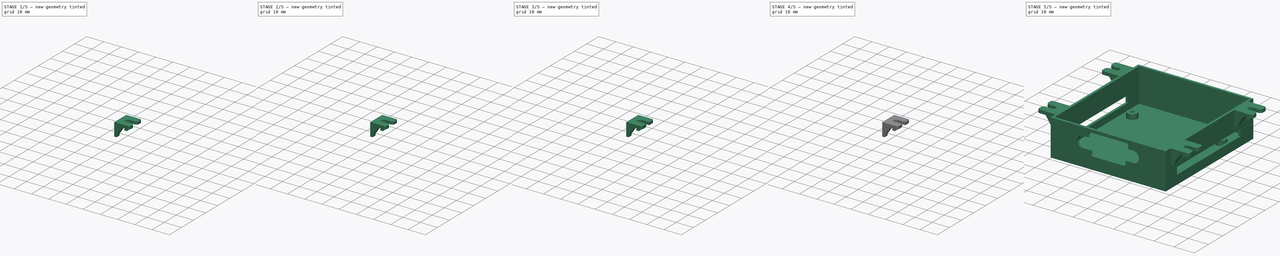
[diagram: build sequence overview — one tinted view per stage of 5, left to right]
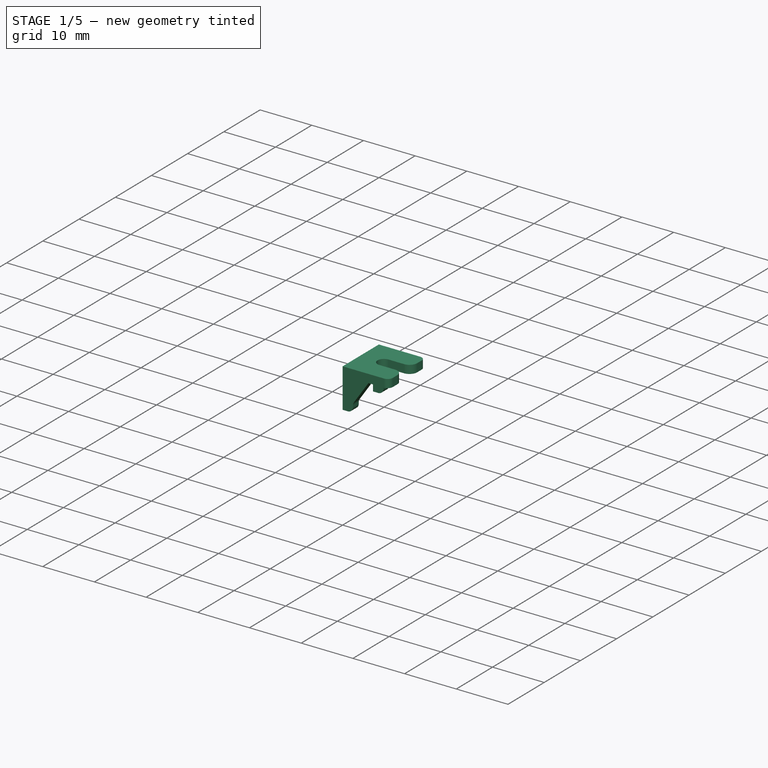
[diagram: stage 1 of 5 — iso view after this stage's code; geometry added in this stage tinted green]
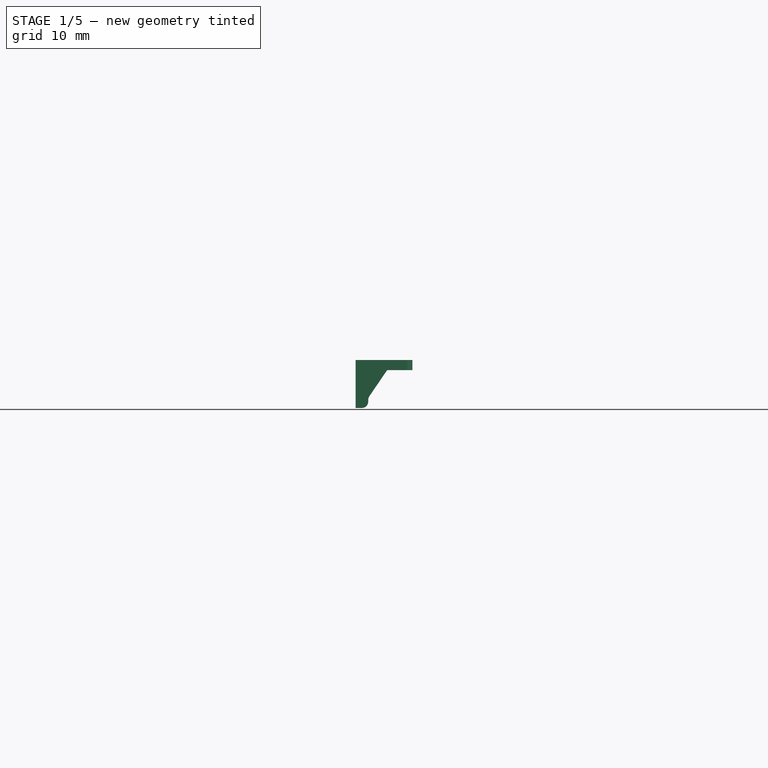
[diagram: stage 1 of 5 — front view after this stage's code; geometry added in this stage tinted green]
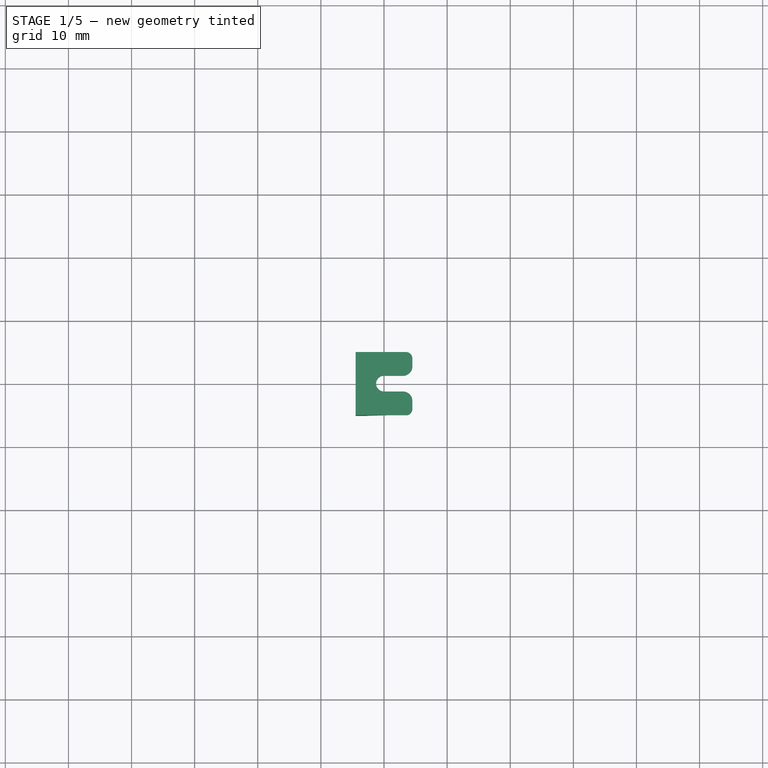
[diagram: stage 1 of 5 — top view after this stage's code; geometry added in this stage tinted green]
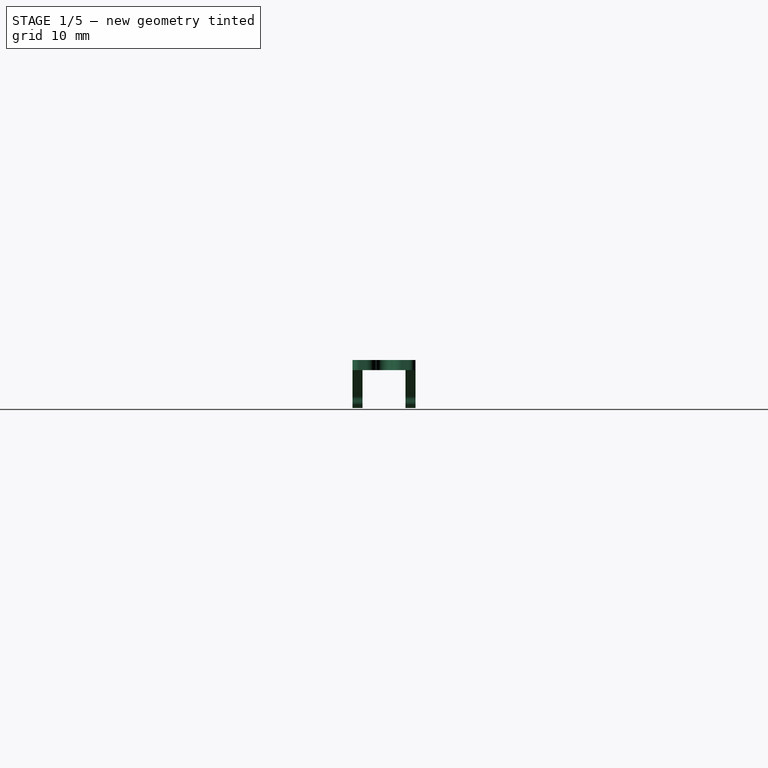
[diagram: stage 1 of 5 — right view after this stage's code; geometry added in this stage tinted green]
FCSTD DOCUMENT  (FreeCAD 0.20R29603 (Git))
Label: ControlBox
License: All rights reserved
LicenseURL: http://en.wikipedia.org/wiki/All_rights_reserved
objects: PartDesign::Fillet×16, Sketcher::SketchObject×13, PartDesign::Pad×10, PartDesign::Plane×7, Spreadsheet::Sheet×5, PartDesign::Body×5, PartDesign::LinearPattern×4, PartDesign::Pocket×3, PartDesign::SubShapeBinder×1, PartDesign::Boolean×1
note: 89 computed .brp shape members not serialized (recipe doc carries the construction recipe); baked Part::Feature solids carry a one-line shape summary decoded from their .brp

FEATURE [PartDesign::Body] Body003  label="Tab3"
  Group = -> [Sketch008,Pad006,DatumPlane004,Sketch009,Pad007,LinearPattern002,Fillet008,Fillet009,Fillet010,Fillet011]
  Origin = -> Origin011
  Placement = pos=(-33,22.5,16.4) rot=(0,0,1;3.14159rad)
  Tip = -> Fillet011
FEATURE [Spreadsheet::Sheet] Spreadsheet003  label="Params003"
  cells = A1=tab_insertion; B1(tab_insertion)=1; A2=tab_width; B2(tab_width)=10; A3=tab_length; B3(tab_length)=9; A4=tab_height; B4(tab_height)=6; A5=tab_thickness; B5(tab_thickness)=1.6; A6=tab_rib_length; B6(tab_rib_length)==B3 - 4; A7=tab_rib_height; B7(tab_rib_height)==B4 - B8; A8=tab_rib_thickness; B8(tab_rib_thickness)=1.6; A9=tab_hole_x; B9(tab_hole_x)==B3 / 2; A10=tab_hole_y; B10(tab_hole_y)=0; A11=tab_hole_diameter; B11(tab_hole_diameter)=2.5; A12=tab_rib_insert; B12(tab_rib_insert)==2 * B1; A13=tab_ribs_gap; B13(tab_ribs_gap)==B2 - B8
FEATURE [Sketcher::SketchObject] Sketch010
  FullyConstrained = true
  MapMode = 5
  Support = -> [XY_Plane012]
  expr: Constraints[13] = <<Params004>>.tab_length
  expr: Constraints[14] = <<Params004>>.tab_width
  expr: Constraints[19] = <<Params004>>.tab_hole_diameter
  expr: Constraints[20] = <<Params004>>.tab_hole_x
  sketch-geometry (8):
    g0: LineSegment StartX=-4.5 StartY=5 StartZ=0 EndX=4.5 EndY=5 EndZ=0
    g1: LineSegment StartX=4.5 StartY=5 StartZ=0 EndX=4.5 EndY=1.25 EndZ=0
    g2: LineSegment StartX=4.5 StartY=-5 StartZ=0 EndX=-4.5 EndY=-5 EndZ=0
    g3: LineSegment StartX=-4.5 StartY=-5 StartZ=0 EndX=-4.5 EndY=5 EndZ=0
    g4: ArcOfCircle CenterX=-3e-16 CenterY=0 CenterZ=0 NormalX=0 NormalY=0 NormalZ=1 AngleXU=0 Radius=1.25 StartAngle=1.5708 EndAngle=4.71239
    g5: LineSegment StartX=-5e-16 StartY=1.25 StartZ=0 EndX=4.5 EndY=1.25 EndZ=0
    g6: LineSegment StartX=4.5 StartY=-1.25 StartZ=0 EndX=-9e-16 EndY=-1.25 EndZ=0
    g7: LineSegment StartX=4.5 StartY=-1.25 StartZ=0 EndX=4.5 EndY=-5 EndZ=0
  constraints (21):
    c: Coincident(g0,g1)
    c: Coincident(g7,g2)
    c: Coincident(g2,g3)
    c: Coincident(g3,g0)
    c: Horizontal(g2)
    c: Vertical(g1)
    c: Symmetric(g0,g0,g-2)
    c: Symmetric(g0,g2,g-1)
    c: PointOnObject(g4,g-1)
    c: Horizontal(g5)
    c: Horizontal(g6)
    c: Coincident(g1,g5)
    c: Coincident(g7,g6)
    c: DistanceX(g0,g0) = 9
    c: DistanceY(g2,g0) = 10
    c: Tangent(g4,g5) = 1.5708
    c: Tangent(g6,g4) = 1.5708
    c: Vertical(g7)
    c: Vertical(g6,g1)
    c: Diameter(g4) = 2.5
    c: DistanceX(g0,g4) = 4.5
FEATURE [PartDesign::Pad] Pad008
  Direction = (0,0,1)
  Length = 1.6
  Length2 = 10
  Profile = -> Sketch010
  ReferenceAxis = -> Sketch010 [N_Axis]
  Type = 0
  expr: Length = <<Params004>>.tab_thickness
FEATURE [PartDesign::Plane] DatumPlane005  label="PlaneRib003"
  Length = 60
  MapMode = 5
  Placement = pos=(0,-5,0) rot=(1,0,0;1.5708rad)
  ResizeMode = 0
  Support = -> [Pad008]
  Width = 60
FEATURE [Sketcher::SketchObject] Sketch011
  ExternalGeometry = -> [Pad008]
  FullyConstrained = true
  MapMode = 5
  Placement = pos=(0,-5,0) rot=(1,0,0;1.5708rad)
  Support = -> [DatumPlane005]
  expr: Constraints[11] = <<Params004>>.tab_rib_height
  expr: Constraints[12] = <<Params004>>.tab_rib_length
  expr: Constraints[13] = <<Params004>>.tab_rib_insert
  expr: Constraints[6] = <<Params004>>.tab_height
  sketch-geometry (5):
    g0: LineSegment StartX=-4.5 StartY=0 StartZ=0 EndX=-4.5 EndY=-6 EndZ=0
    g1: LineSegment StartX=-4.5 StartY=-6 StartZ=0 EndX=-2.5 EndY=-6 EndZ=0
    g2: LineSegment StartX=0.5 StartY=0 StartZ=0 EndX=-4.5 EndY=0 EndZ=0
    g3: LineSegment StartX=-2.5 StartY=-6 StartZ=0 EndX=-2.5 EndY=-4.4 EndZ=0
    g4: LineSegment StartX=-2.5 StartY=-4.4 StartZ=0 EndX=0.5 EndY=0 EndZ=0
  constraints (14):
    c: Coincident(g0,g-3)
    c: Vertical(g0)
    c: Coincident(g1,g0)
    c: PointOnObject(g2,g-1)
    c: Coincident(g2,g0)
    c: Horizontal(g1)
    c: DistanceY(g0,g0) = 6
    c: Coincident(g3,g1)
    c: Vertical(g3)
    c: Coincident(g4,g3)
    c: Coincident(g4,g2)
    c: DistanceY(g3,g-1) = 4.4
    c: DistanceX(g0,g2) = 5
    c: DistanceX(g0,g1) = 2
FEATURE [PartDesign::Pad] Pad009  label="TabRib008"
  BaseFeature = -> Pad008
  Direction = (0,-1,2e-16)
  Length = 1.6
  Length2 = 10
  Profile = -> Sketch011
  ReferenceAxis = -> Sketch011 [N_Axis]
  Reversed = true
  Type = 0
  expr: Length = <<Params004>>.tab_rib_thickness
FEATURE [PartDesign::LinearPattern] LinearPattern003  label="TabRib007"
  BaseFeature = -> Pad009
  Direction = -> Y_Axis012
  Length = 8.4
  Occurrences = 2
  Originals = -> [Pad009]
  expr: Length = <<Params004>>.tab_ribs_gap
FEATURE [PartDesign::Fillet] Fillet012
  Base = -> LinearPattern003 [Edge51,Edge52]
  BaseFeature = -> LinearPattern003
  Radius = 1
  SupportTransform = false
  UseAllEdges = false
FEATURE [PartDesign::Fillet] Fillet013
  Base = -> Fillet012 [Edge14,Edge52]
  BaseFeature = -> Fillet012
  Radius = 1
  SupportTransform = false
  UseAllEdges = false
FEATURE [PartDesign::Fillet] Fillet014
  Base = -> Fillet013 [Edge19,Edge53]
  BaseFeature = -> Fillet013
  Radius = 1
  SupportTransform = false
  UseAllEdges = false
FEATURE [PartDesign::Fillet] Fillet015
  Base = -> Fillet014 [Edge38,Edge43]
  BaseFeature = -> Fillet014
  Radius = 1.5
  SupportTransform = false
  UseAllEdges = false
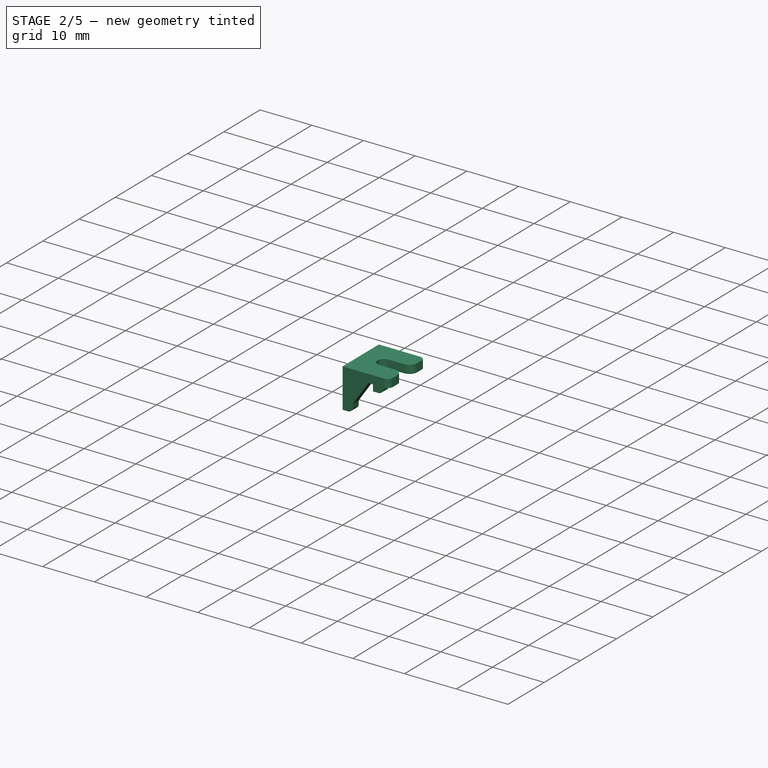
[diagram: stage 2 of 5 — iso view after this stage's code; geometry added in this stage tinted green]
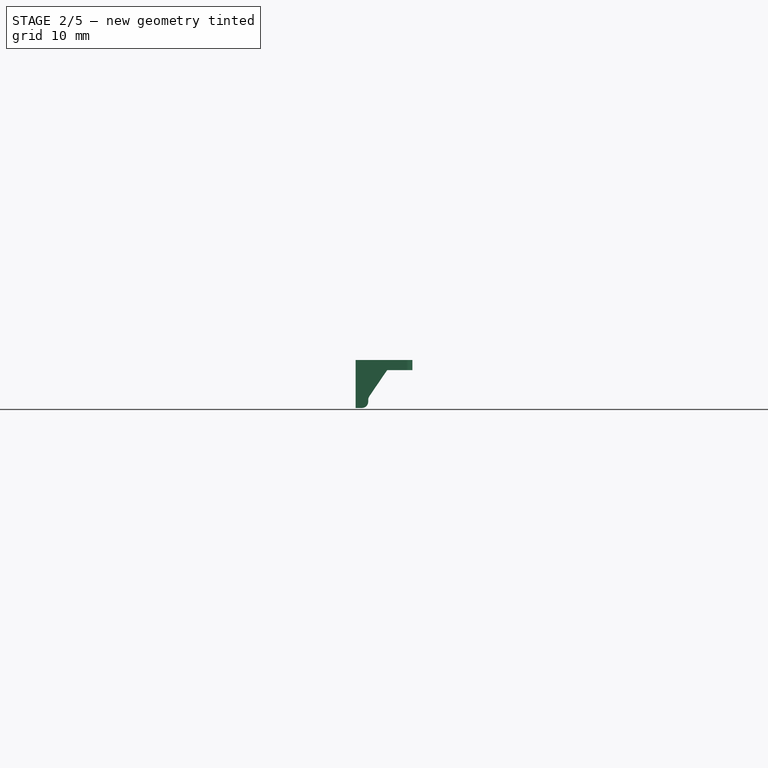
[diagram: stage 2 of 5 — front view after this stage's code; geometry added in this stage tinted green]
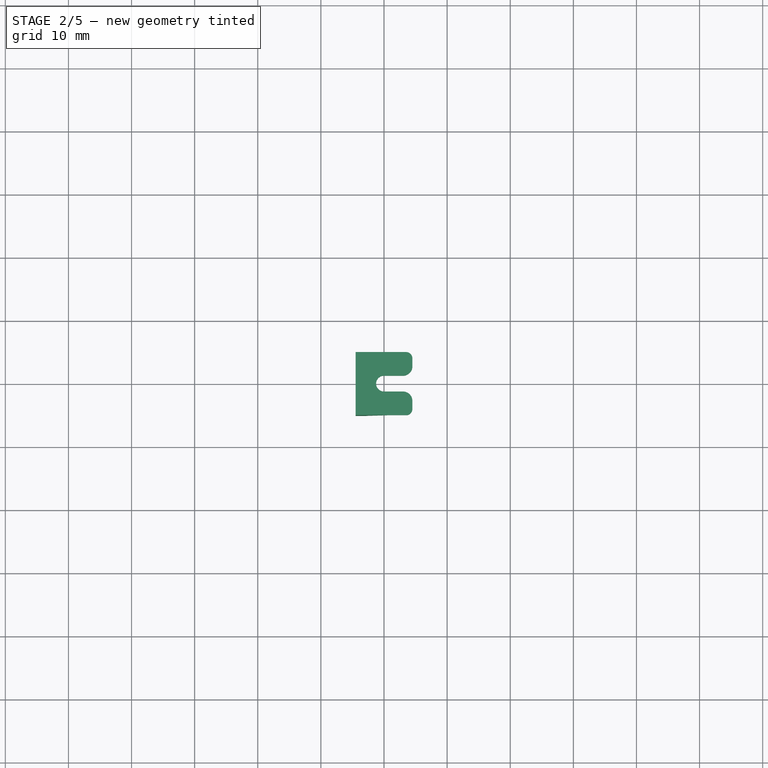
[diagram: stage 2 of 5 — top view after this stage's code; geometry added in this stage tinted green]
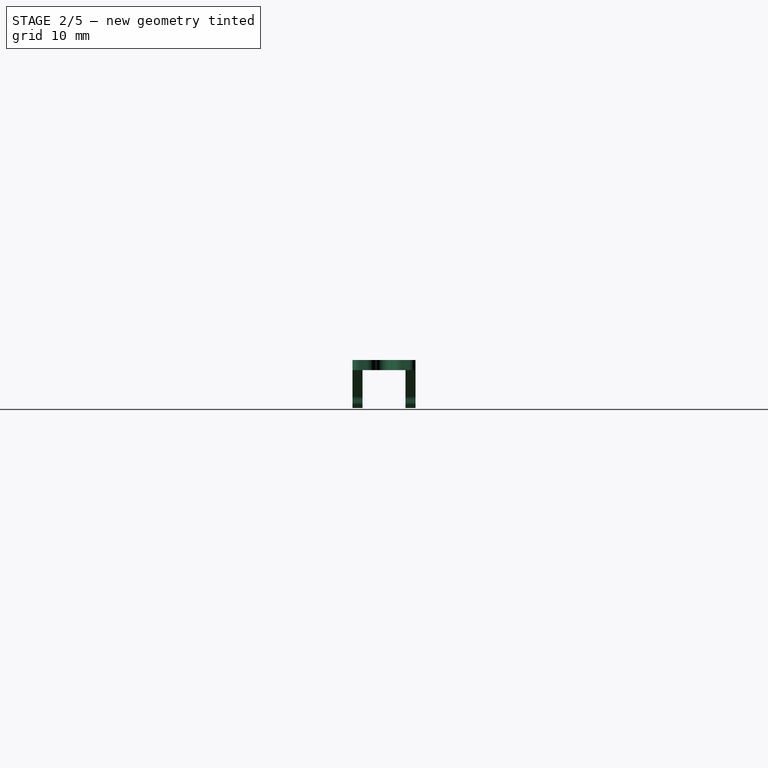
[diagram: stage 2 of 5 — right view after this stage's code; geometry added in this stage tinted green]
FEATURE [PartDesign::Body] Body002  label="Tab2"
  Group = -> [Sketch006,Pad004,DatumPlane003,Sketch007,Pad005,LinearPattern001,Fillet004,Fillet005,Fillet006,Fillet007]
  Origin = -> Origin010
  Placement = pos=(33,22.5,16.4) rot=(0,0,1;0rad)
  Tip = -> Fillet007
FEATURE [Spreadsheet::Sheet] Spreadsheet002  label="Params002"
  cells = A1=tab_insertion; B1(tab_insertion)=1; A2=tab_width; B2(tab_width)=10; A3=tab_length; B3(tab_length)=9; A4=tab_height; B4(tab_height)=6; A5=tab_thickness; B5(tab_thickness)=1.6; A6=tab_rib_length; B6(tab_rib_length)==B3 - 4; A7=tab_rib_height; B7(tab_rib_height)==B4 - B8; A8=tab_rib_thickness; B8(tab_rib_thickness)=1.6; A9=tab_hole_x; B9(tab_hole_x)==B3 / 2; A10=tab_hole_y; B10(tab_hole_y)=0; A11=tab_hole_diameter; B11(tab_hole_diameter)=2.4; A12=tab_rib_insert; B12(tab_rib_insert)==2 * B1; A13=tab_ribs_gap; B13(tab_ribs_gap)==B2 - B8
FEATURE [Sketcher::SketchObject] Sketch008
  FullyConstrained = true
  MapMode = 5
  Support = -> [XY_Plane011]
  expr: Constraints[13] = <<Params003>>.tab_length
  expr: Constraints[14] = <<Params003>>.tab_width
  expr: Constraints[19] = <<Params003>>.tab_hole_diameter
  expr: Constraints[20] = <<Params003>>.tab_hole_x
  sketch-geometry (8):
    g0: LineSegment StartX=-4.5 StartY=5 StartZ=0 EndX=4.5 EndY=5 EndZ=0
    g1: LineSegment StartX=4.5 StartY=5 StartZ=0 EndX=4.5 EndY=1.25 EndZ=0
    g2: LineSegment StartX=4.5 StartY=-5 StartZ=0 EndX=-4.5 EndY=-5 EndZ=0
    g3: LineSegment StartX=-4.5 StartY=-5 StartZ=0 EndX=-4.5 EndY=5 EndZ=0
    g4: ArcOfCircle CenterX=-1e-16 CenterY=0 CenterZ=0 NormalX=0 NormalY=0 NormalZ=1 AngleXU=0 Radius=1.25 StartAngle=1.5708 EndAngle=4.71239
    g5: LineSegment StartX=-3e-16 StartY=1.25 StartZ=0 EndX=4.5 EndY=1.25 EndZ=0
    g6: LineSegment StartX=4.5 StartY=-1.25 StartZ=0 EndX=0 EndY=-1.25 EndZ=0
    g7: LineSegment StartX=4.5 StartY=-1.25 StartZ=0 EndX=4.5 EndY=-5 EndZ=0
  constraints (21):
    c: Coincident(g0,g1)
    c: Coincident(g7,g2)
    c: Coincident(g2,g3)
    c: Coincident(g3,g0)
    c: Horizontal(g2)
    c: Vertical(g1)
    c: Symmetric(g0,g0,g-2)
    c: Symmetric(g0,g2,g-1)
    c: PointOnObject(g4,g-1)
    c: Horizontal(g5)
    c: Horizontal(g6)
    c: Coincident(g1,g5)
    c: Coincident(g7,g6)
    c: DistanceX(g0,g0) = 9
    c: DistanceY(g2,g0) = 10
    c: Tangent(g4,g5) = 1.5708
    c: Tangent(g6,g4) = 1.5708
    c: Vertical(g7)
    c: Vertical(g6,g1)
    c: Diameter(g4) = 2.5
    c: DistanceX(g0,g4) = 4.5
FEATURE [PartDesign::Pad] Pad006
  Direction = (0,0,1)
  Length = 1.6
  Length2 = 10
  Profile = -> Sketch008
  ReferenceAxis = -> Sketch008 [N_Axis]
  Type = 0
  expr: Length = <<Params003>>.tab_thickness
FEATURE [PartDesign::Plane] DatumPlane004  label="PlaneRib002"
  Length = 60
  MapMode = 5
  Placement = pos=(0,-5,0) rot=(1,0,0;1.5708rad)
  ResizeMode = 0
  Support = -> [Pad006]
  Width = 60
FEATURE [Sketcher::SketchObject] Sketch009
  ExternalGeometry = -> [Pad006]
  FullyConstrained = true
  MapMode = 5
  Placement = pos=(0,-5,0) rot=(1,0,0;1.5708rad)
  Support = -> [DatumPlane004]
  expr: Constraints[11] = <<Params003>>.tab_rib_height
  expr: Constraints[12] = <<Params003>>.tab_rib_length
  expr: Constraints[13] = <<Params003>>.tab_rib_insert
  expr: Constraints[6] = <<Params003>>.tab_height
  sketch-geometry (5):
    g0: LineSegment StartX=-4.5 StartY=0 StartZ=0 EndX=-4.5 EndY=-6 EndZ=0
    g1: LineSegment StartX=-4.5 StartY=-6 StartZ=0 EndX=-2.5 EndY=-6 EndZ=0
    g2: LineSegment StartX=0.5 StartY=0 StartZ=0 EndX=-4.5 EndY=0 EndZ=0
    g3: LineSegment StartX=-2.5 StartY=-6 StartZ=0 EndX=-2.5 EndY=-4.4 EndZ=0
    g4: LineSegment StartX=-2.5 StartY=-4.4 StartZ=0 EndX=0.5 EndY=0 EndZ=0
  constraints (14):
    c: Coincident(g0,g-3)
    c: Vertical(g0)
    c: Coincident(g1,g0)
    c: PointOnObject(g2,g-1)
    c: Coincident(g2,g0)
    c: Horizontal(g1)
    c: DistanceY(g0,g0) = 6
    c: Coincident(g3,g1)
    c: Vertical(g3)
    c: Coincident(g4,g3)
    c: Coincident(g4,g2)
    c: DistanceY(g3,g-1) = 4.4
    c: DistanceX(g0,g2) = 5
    c: DistanceX(g0,g1) = 2
FEATURE [PartDesign::Pad] Pad007  label="TabRib006"
  BaseFeature = -> Pad006
  Direction = (0,-1,2e-16)
  Length = 1.6
  Length2 = 10
  Profile = -> Sketch009
  ReferenceAxis = -> Sketch009 [N_Axis]
  Reversed = true
  Type = 0
  expr: Length = <<Params003>>.tab_rib_thickness
FEATURE [PartDesign::LinearPattern] LinearPattern002  label="TabRib005"
  BaseFeature = -> Pad007
  Direction = -> Y_Axis011
  Length = 8.4
  Occurrences = 2
  Originals = -> [Pad007]
  expr: Length = <<Params003>>.tab_ribs_gap
FEATURE [PartDesign::Fillet] Fillet008
  Base = -> LinearPattern002 [Edge51,Edge52]
  BaseFeature = -> LinearPattern002
  Radius = 1
  SupportTransform = false
  UseAllEdges = false
FEATURE [PartDesign::Fillet] Fillet009
  Base = -> Fillet008 [Edge14,Edge52]
  BaseFeature = -> Fillet008
  Radius = 1
  SupportTransform = false
  UseAllEdges = false
FEATURE [PartDesign::Fillet] Fillet010
  Base = -> Fillet009 [Edge19,Edge53]
  BaseFeature = -> Fillet009
  Radius = 1
  SupportTransform = false
  UseAllEdges = false
FEATURE [PartDesign::Fillet] Fillet011
  Base = -> Fillet010 [Edge38,Edge43]
  BaseFeature = -> Fillet010
  Radius = 1.5
  SupportTransform = false
  UseAllEdges = false
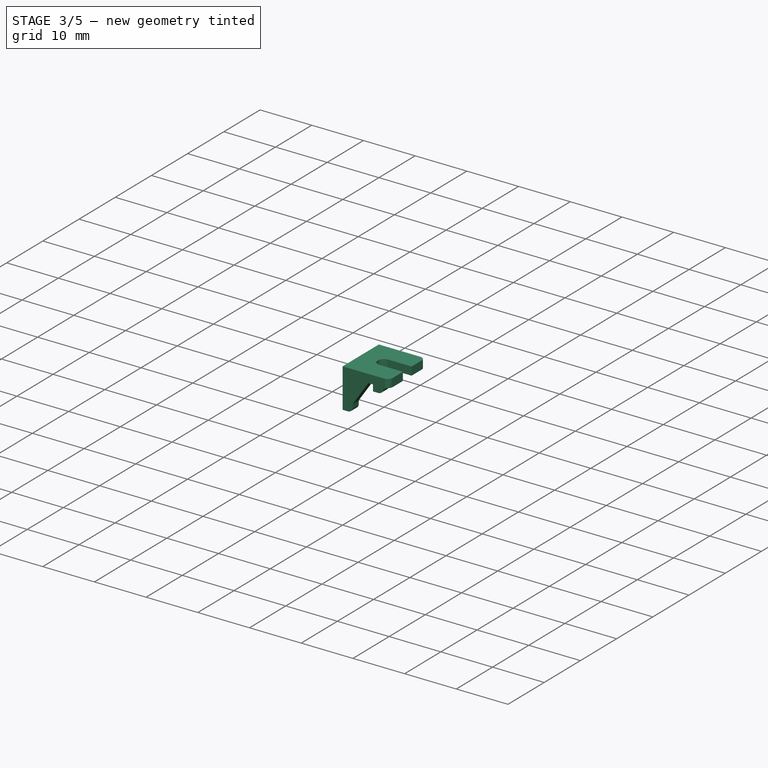
[diagram: stage 3 of 5 — iso view after this stage's code; geometry added in this stage tinted green]
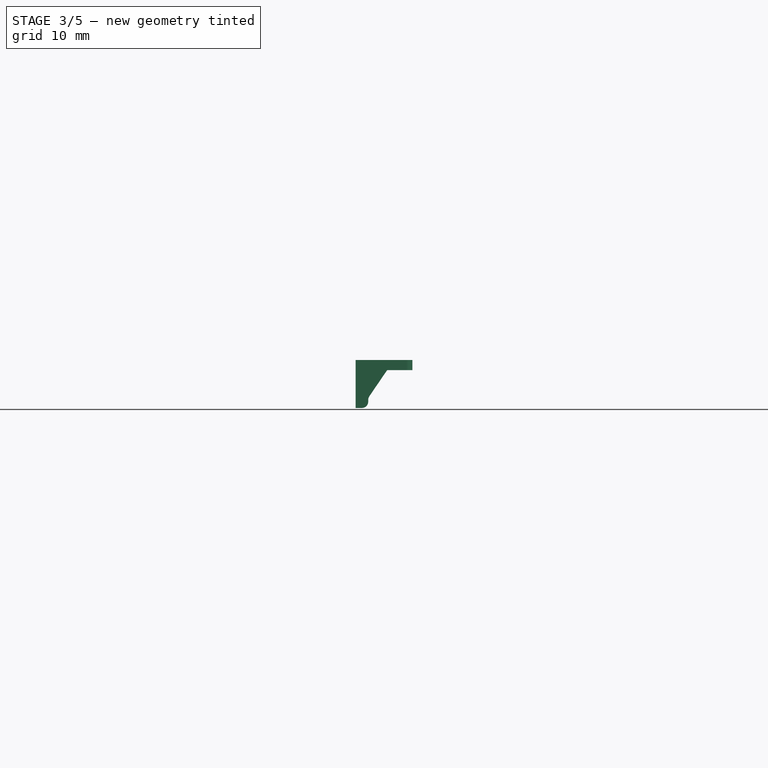
[diagram: stage 3 of 5 — front view after this stage's code; geometry added in this stage tinted green]
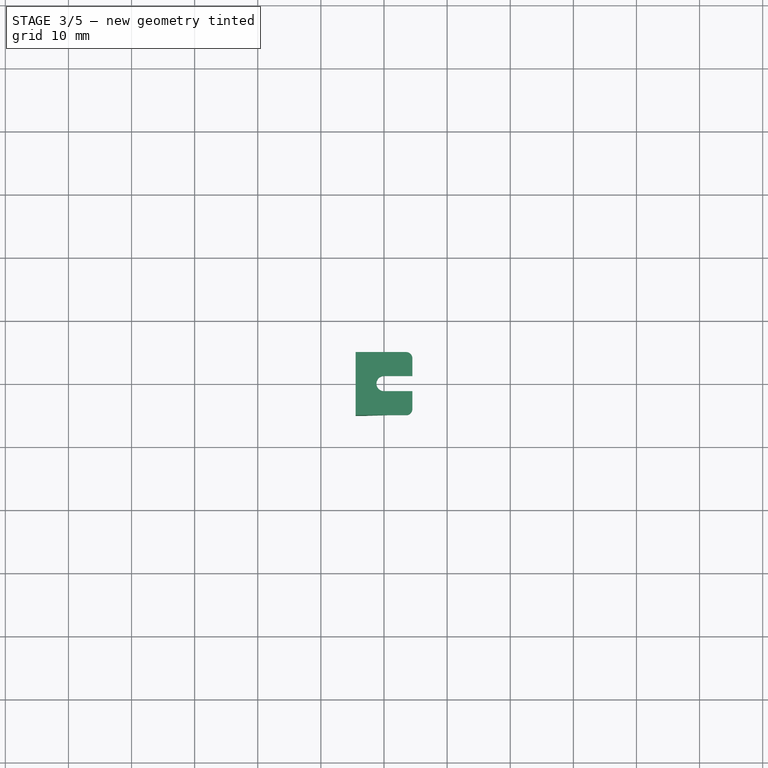
[diagram: stage 3 of 5 — top view after this stage's code; geometry added in this stage tinted green]
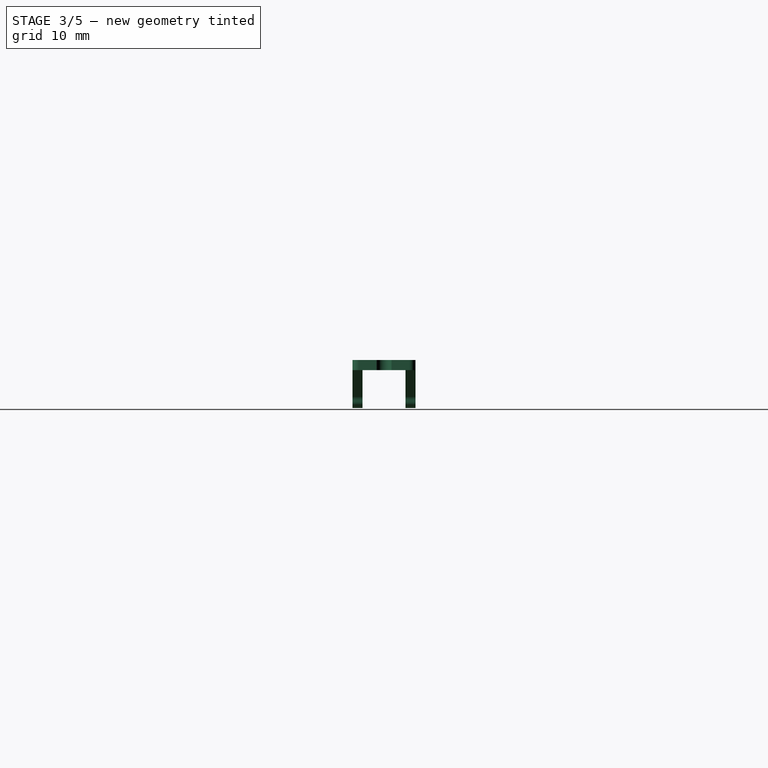
[diagram: stage 3 of 5 — right view after this stage's code; geometry added in this stage tinted green]
FEATURE [PartDesign::Body] Body001  label="Tab1"
  Group = -> [Sketch004,Pad002,DatumPlane002,Sketch005,Pad003,LinearPattern,Fillet,Fillet001,Fillet002,Fillet003]
  Origin = -> Origin009
  Placement = pos=(33,-22.5,16.4) rot=(0,0,1;0rad)
  Tip = -> Fillet003
FEATURE [Spreadsheet::Sheet] Spreadsheet001  label="Params001"
  cells = A1=tab_insertion; B1(tab_insertion)=1; A2=tab_width; B2(tab_width)=10; A3=tab_length; B3(tab_length)=9; A4=tab_height; B4(tab_height)=5.6; A5=tab_thickness; B5(tab_thickness)=1.6; A6=tab_rib_length; B6(tab_rib_length)==B3 - 4; A7=tab_rib_height; B7(tab_rib_height)==B4 - B8; A8=tab_rib_thickness; B8(tab_rib_thickness)=1.6; A9=tab_hole_x; B9(tab_hole_x)==B3 / 2; A10=tab_hole_y; B10(tab_hole_y)=0; A11=tab_hole_diameter; B11(tab_hole_diameter)=2.5; A12=tab_rib_insert; B12(tab_rib_insert)==2 * B1; A13=tab_ribs_gap; B13(tab_ribs_gap)==B2 - B8
FEATURE [Sketcher::SketchObject] Sketch006
  FullyConstrained = true
  MapMode = 5
  Support = -> [XY_Plane010]
  expr: Constraints[13] = <<Params002>>.tab_length
  expr: Constraints[14] = <<Params002>>.tab_width
  expr: Constraints[19] = <<Params002>>.tab_hole_diameter
  expr: Constraints[20] = <<Params002>>.tab_hole_x
  sketch-geometry (8):
    g0: LineSegment StartX=-4.5 StartY=5 StartZ=0 EndX=4.5 EndY=5 EndZ=0
    g1: LineSegment StartX=4.5 StartY=5 StartZ=0 EndX=4.5 EndY=1.2 EndZ=0
    g2: LineSegment StartX=4.5 StartY=-5 StartZ=0 EndX=-4.5 EndY=-5 EndZ=0
    g3: LineSegment StartX=-4.5 StartY=-5 StartZ=0 EndX=-4.5 EndY=5 EndZ=0
    g4: ArcOfCircle CenterX=-3e-16 CenterY=0 CenterZ=0 NormalX=0 NormalY=0 NormalZ=1 AngleXU=0 Radius=1.2 StartAngle=1.5708 EndAngle=4.71239
    g5: LineSegment StartX=-5e-16 StartY=1.2 StartZ=0 EndX=4.5 EndY=1.2 EndZ=0
    g6: LineSegment StartX=4.5 StartY=-1.2 StartZ=0 EndX=-9e-16 EndY=-1.2 EndZ=0
    g7: LineSegment StartX=4.5 StartY=-1.2 StartZ=0 EndX=4.5 EndY=-5 EndZ=0
  constraints (21):
    c: Coincident(g0,g1)
    c: Coincident(g7,g2)
    c: Coincident(g2,g3)
    c: Coincident(g3,g0)
    c: Horizontal(g2)
    c: Vertical(g1)
    c: Symmetric(g0,g0,g-2)
    c: Symmetric(g0,g2,g-1)
    c: PointOnObject(g4,g-1)
    c: Horizontal(g5)
    c: Horizontal(g6)
    c: Coincident(g1,g5)
    c: Coincident(g7,g6)
    c: DistanceX(g0,g0) = 9
    c: DistanceY(g2,g0) = 10
    c: Tangent(g4,g5) = 1.5708
    c: Tangent(g6,g4) = 1.5708
    c: Vertical(g7)
    c: Vertical(g6,g1)
    c: Diameter(g4) = 2.4
    c: DistanceX(g0,g4) = 4.5
FEATURE [PartDesign::Pad] Pad004
  Direction = (0,0,1)
  Length = 1.6
  Length2 = 10
  Profile = -> Sketch006
  ReferenceAxis = -> Sketch006 [N_Axis]
  Type = 0
  expr: Length = <<Params002>>.tab_thickness
FEATURE [PartDesign::Plane] DatumPlane003  label="PlaneRib001"
  Length = 60
  MapMode = 5
  Placement = pos=(0,-5,0) rot=(1,0,0;1.5708rad)
  ResizeMode = 0
  Support = -> [Pad004]
  Width = 60
FEATURE [Sketcher::SketchObject] Sketch007
  ExternalGeometry = -> [Pad004]
  FullyConstrained = true
  MapMode = 5
  Placement = pos=(0,-5,0) rot=(1,0,0;1.5708rad)
  Support = -> [DatumPlane003]
  expr: Constraints[11] = <<Params002>>.tab_rib_height
  expr: Constraints[12] = <<Params002>>.tab_rib_length
  expr: Constraints[13] = <<Params002>>.tab_rib_insert
  expr: Constraints[6] = <<Params002>>.tab_height
  sketch-geometry (5):
    g0: LineSegment StartX=-4.5 StartY=0 StartZ=0 EndX=-4.5 EndY=-6 EndZ=0
    g1: LineSegment StartX=-4.5 StartY=-6 StartZ=0 EndX=-2.5 EndY=-6 EndZ=0
    g2: LineSegment StartX=0.5 StartY=0 StartZ=0 EndX=-4.5 EndY=0 EndZ=0
    g3: LineSegment StartX=-2.5 StartY=-6 StartZ=0 EndX=-2.5 EndY=-4.4 EndZ=0
    g4: LineSegment StartX=-2.5 StartY=-4.4 StartZ=0 EndX=0.5 EndY=0 EndZ=0
  constraints (14):
    c: Coincident(g0,g-3)
    c: Vertical(g0)
    c: Coincident(g1,g0)
    c: PointOnObject(g2,g-1)
    c: Coincident(g2,g0)
    c: Horizontal(g1)
    c: DistanceY(g0,g0) = 6
    c: Coincident(g3,g1)
    c: Vertical(g3)
    c: Coincident(g4,g3)
    c: Coincident(g4,g2)
    c: DistanceY(g3,g-1) = 4.4
    c: DistanceX(g0,g2) = 5
    c: DistanceX(g0,g1) = 2
FEATURE [PartDesign::Pad] Pad005  label="TabRib004"
  BaseFeature = -> Pad004
  Direction = (0,-1,2e-16)
  Length = 1.6
  Length2 = 10
  Profile = -> Sketch007
  ReferenceAxis = -> Sketch007 [N_Axis]
  Reversed = true
  Type = 0
  expr: Length = <<Params002>>.tab_rib_thickness
FEATURE [PartDesign::LinearPattern] LinearPattern001  label="TabRib003"
  BaseFeature = -> Pad005
  Direction = -> Y_Axis010
  Length = 8.4
  Occurrences = 2
  Originals = -> [Pad005]
  expr: Length = <<Params002>>.tab_ribs_gap
FEATURE [PartDesign::Fillet] Fillet004
  Base = -> LinearPattern001 [Edge51,Edge52]
  BaseFeature = -> LinearPattern001
  Radius = 1
  SupportTransform = false
  UseAllEdges = false
FEATURE [PartDesign::Fillet] Fillet005
  Base = -> Fillet004 [Edge14,Edge52]
  BaseFeature = -> Fillet004
  Radius = 1
  SupportTransform = false
  UseAllEdges = false
FEATURE [PartDesign::Fillet] Fillet006
  Base = -> Fillet005 [Edge19,Edge53]
  BaseFeature = -> Fillet005
  Radius = 1
  SupportTransform = false
  UseAllEdges = false
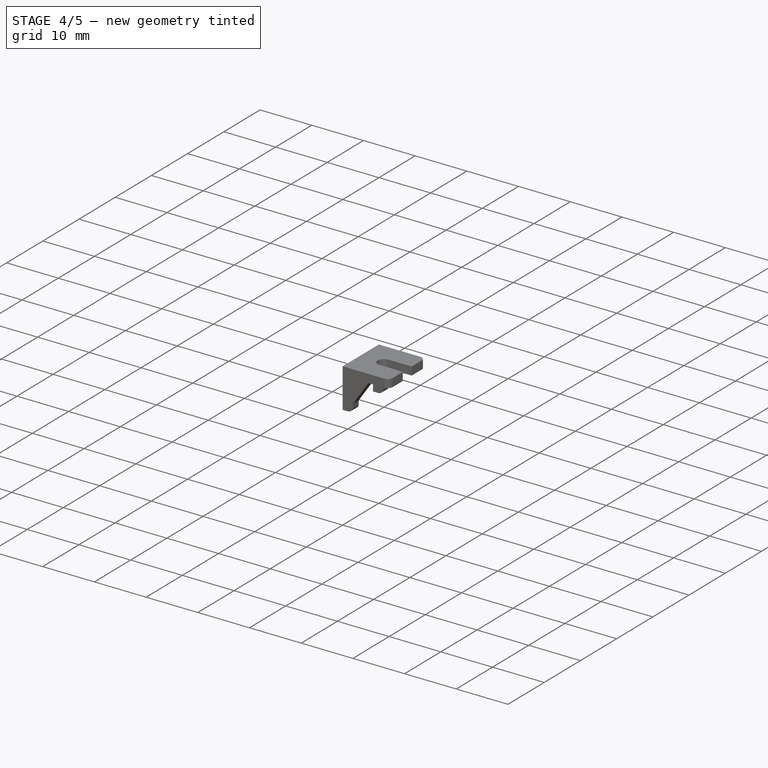
[diagram: stage 4 of 5 — iso view after this stage's code; geometry added in this stage tinted green]
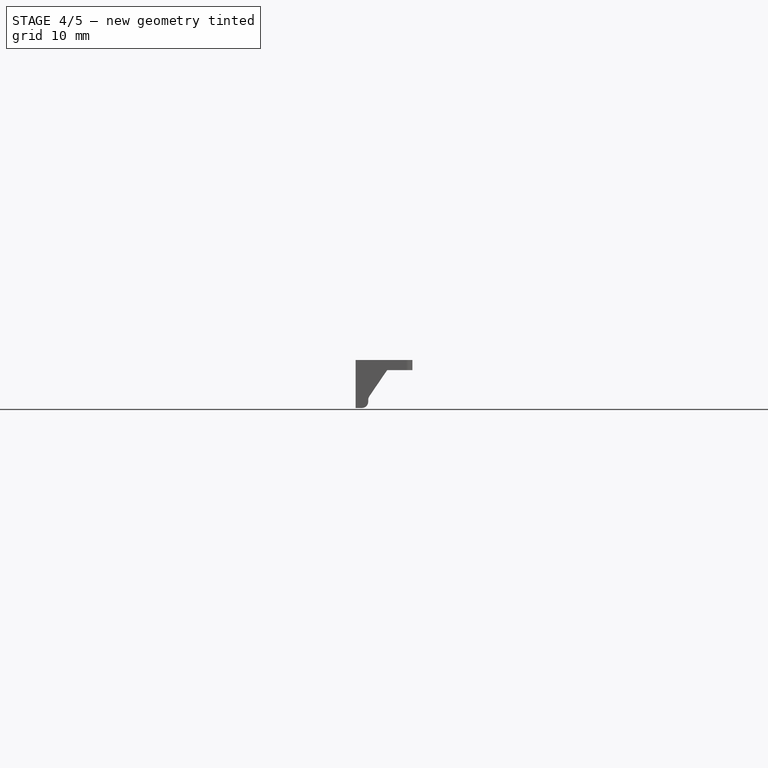
[diagram: stage 4 of 5 — front view after this stage's code; geometry added in this stage tinted green]
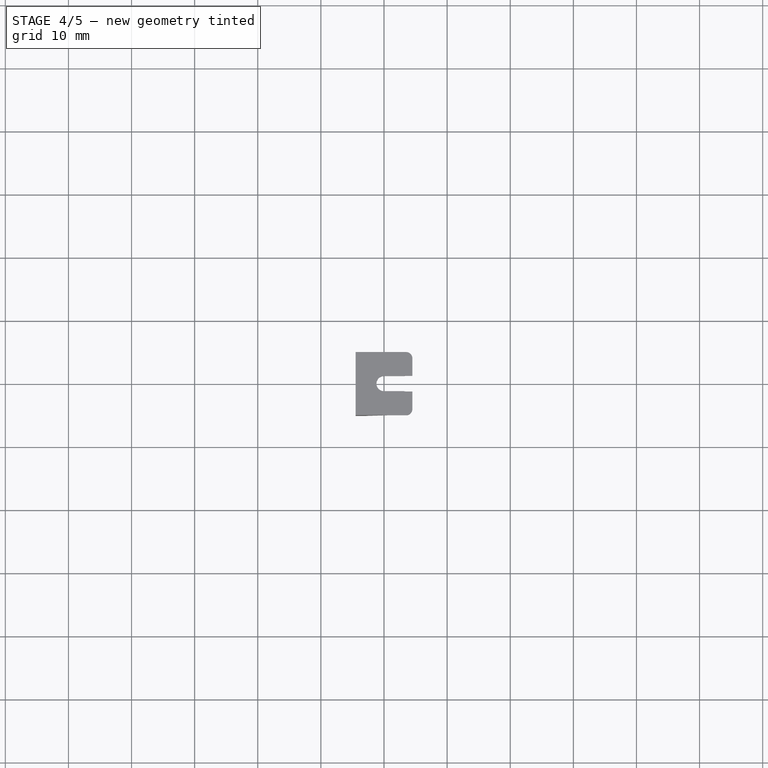
[diagram: stage 4 of 5 — top view after this stage's code; geometry added in this stage tinted green]
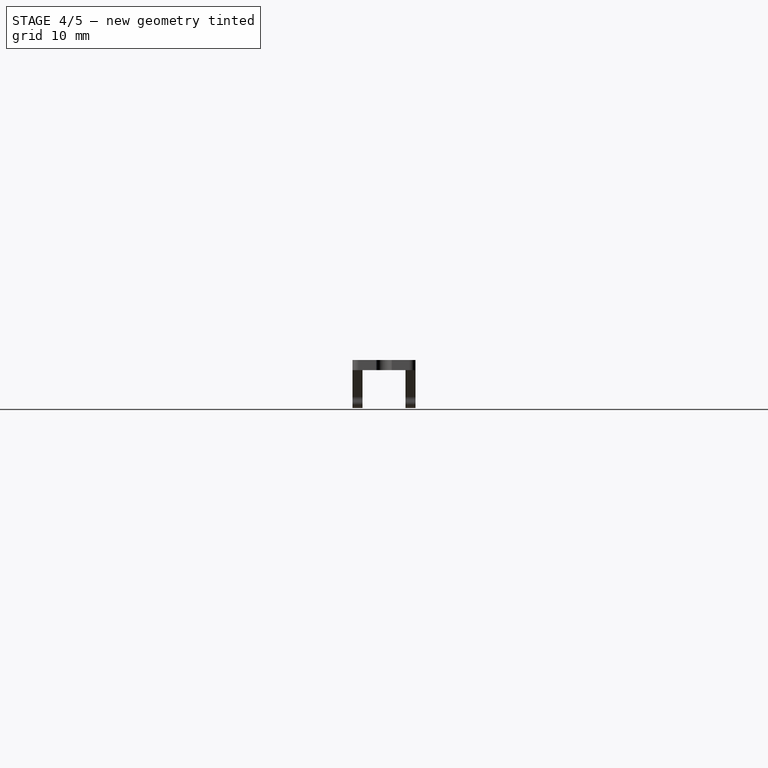
[diagram: stage 4 of 5 — right view after this stage's code; geometry added in this stage tinted green]
FEATURE [Sketcher::SketchObject] Sketch004
  FullyConstrained = true
  MapMode = 5
  Support = -> [XY_Plane009]
  expr: Constraints[13] = <<Params001>>.tab_length
  expr: Constraints[14] = <<Params001>>.tab_width
  expr: Constraints[19] = <<Params001>>.tab_hole_diameter
  expr: Constraints[20] = <<Params001>>.tab_hole_x
  sketch-geometry (8):
    g0: LineSegment StartX=-4.5 StartY=5 StartZ=0 EndX=4.5 EndY=5 EndZ=0
    g1: LineSegment StartX=4.5 StartY=5 StartZ=0 EndX=4.5 EndY=1.25 EndZ=0
    g2: LineSegment StartX=4.5 StartY=-5 StartZ=0 EndX=-4.5 EndY=-5 EndZ=0
    g3: LineSegment StartX=-4.5 StartY=-5 StartZ=0 EndX=-4.5 EndY=5 EndZ=0
    g4: ArcOfCircle CenterX=-1e-16 CenterY=0 CenterZ=0 NormalX=0 NormalY=0 NormalZ=1 AngleXU=0 Radius=1.25 StartAngle=1.5708 EndAngle=4.71239
    g5: LineSegment StartX=-3e-16 StartY=1.25 StartZ=0 EndX=4.5 EndY=1.25 EndZ=0
    g6: LineSegment StartX=4.5 StartY=-1.25 StartZ=0 EndX=0 EndY=-1.25 EndZ=0
    g7: LineSegment StartX=4.5 StartY=-1.25 StartZ=0 EndX=4.5 EndY=-5 EndZ=0
  constraints (21):
    c: Coincident(g0,g1)
    c: Coincident(g7,g2)
    c: Coincident(g2,g3)
    c: Coincident(g3,g0)
    c: Horizontal(g2)
    c: Vertical(g1)
    c: Symmetric(g0,g0,g-2)
    c: Symmetric(g0,g2,g-1)
    c: PointOnObject(g4,g-1)
    c: Horizontal(g5)
    c: Horizontal(g6)
    c: Coincident(g1,g5)
    c: Coincident(g7,g6)
    c: DistanceX(g0,g0) = 9
    c: DistanceY(g2,g0) = 10
    c: Tangent(g4,g5) = 1.5708
    c: Tangent(g6,g4) = 1.5708
    c: Vertical(g7)
    c: Vertical(g6,g1)
    c: Diameter(g4) = 2.5
    c: DistanceX(g0,g4) = 4.5
FEATURE [PartDesign::Pad] Pad002
  Direction = (0,0,1)
  Length = 1.6
  Length2 = 10
  Profile = -> Sketch004
  ReferenceAxis = -> Sketch004 [N_Axis]
  Type = 0
  expr: Length = <<Params001>>.tab_thickness
FEATURE [PartDesign::Plane] DatumPlane002  label="PlaneRib"
  Length = 60
  MapMode = 5
  Placement = pos=(0,-5,0) rot=(1,0,0;1.5708rad)
  ResizeMode = 0
  Support = -> [Pad002]
  Width = 60
FEATURE [Sketcher::SketchObject] Sketch005
  ExternalGeometry = -> [Pad002]
  FullyConstrained = true
  MapMode = 5
  Placement = pos=(0,-5,0) rot=(1,0,0;1.5708rad)
  Support = -> [DatumPlane002]
  expr: Constraints[11] = <<Params001>>.tab_rib_height
  expr: Constraints[12] = <<Params001>>.tab_rib_length
  expr: Constraints[13] = <<Params001>>.tab_rib_insert
  expr: Constraints[6] = <<Params001>>.tab_height
  sketch-geometry (5):
    g0: LineSegment StartX=-4.5 StartY=0 StartZ=0 EndX=-4.5 EndY=-5.6 EndZ=0
    g1: LineSegment StartX=-4.5 StartY=-5.6 StartZ=0 EndX=-2.5 EndY=-5.6 EndZ=0
    g2: LineSegment StartX=0.5 StartY=0 StartZ=0 EndX=-4.5 EndY=0 EndZ=0
    g3: LineSegment StartX=-2.5 StartY=-5.6 StartZ=0 EndX=-2.5 EndY=-4 EndZ=0
    g4: LineSegment StartX=-2.5 StartY=-4 StartZ=0 EndX=0.5 EndY=0 EndZ=0
  constraints (14):
    c: Coincident(g0,g-3)
    c: Vertical(g0)
    c: Coincident(g1,g0)
    c: PointOnObject(g2,g-1)
    c: Coincident(g2,g0)
    c: Horizontal(g1)
    c: DistanceY(g0,g0) = 5.6
    c: Coincident(g3,g1)
    c: Vertical(g3)
    c: Coincident(g4,g3)
    c: Coincident(g4,g2)
    c: DistanceY(g3,g-1) = 4
    c: DistanceX(g0,g2) = 5
    c: DistanceX(g0,g1) = 2
FEATURE [PartDesign::Pad] Pad003  label="TabRib1"
  BaseFeature = -> Pad002
  Direction = (0,-1,2e-16)
  Length = 1.6
  Length2 = 10
  Profile = -> Sketch005
  ReferenceAxis = -> Sketch005 [N_Axis]
  Reversed = true
  Type = 0
  expr: Length = <<Params001>>.tab_rib_thickness
FEATURE [PartDesign::LinearPattern] LinearPattern  label="TabRib2"
  BaseFeature = -> Pad003
  Direction = -> Y_Axis009
  Length = 8.4
  Occurrences = 2
  Originals = -> [Pad003]
  expr: Length = <<Params001>>.tab_ribs_gap
FEATURE [PartDesign::Fillet] Fillet
  Base = -> LinearPattern [Edge51,Edge52]
  BaseFeature = -> LinearPattern
  Radius = 1
  SupportTransform = false
  UseAllEdges = false
FEATURE [PartDesign::Fillet] Fillet001
  Base = -> Fillet [Edge14,Edge52]
  BaseFeature = -> Fillet
  Radius = 1
  SupportTransform = false
  UseAllEdges = false
FEATURE [PartDesign::Fillet] Fillet002
  Base = -> Fillet001 [Edge19,Edge53]
  BaseFeature = -> Fillet001
  Radius = 1
  SupportTransform = false
  UseAllEdges = false
FEATURE [PartDesign::Fillet] Fillet007
  Base = -> Fillet006 [Edge38,Edge43]
  BaseFeature = -> Fillet006
  Radius = 1.5
  SupportTransform = false
  UseAllEdges = false
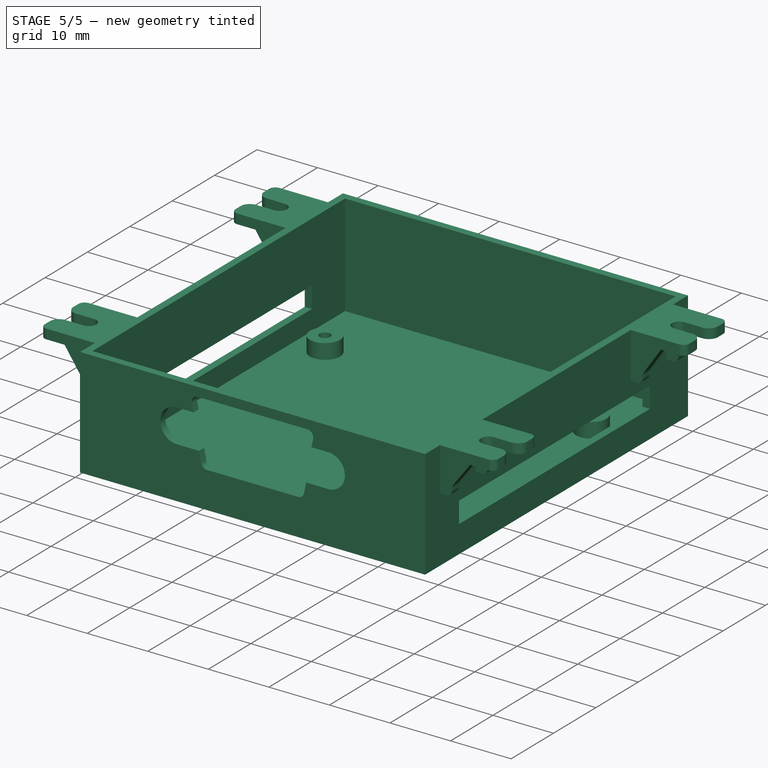
[diagram: stage 5 of 5 — iso view after this stage's code; geometry added in this stage tinted green]
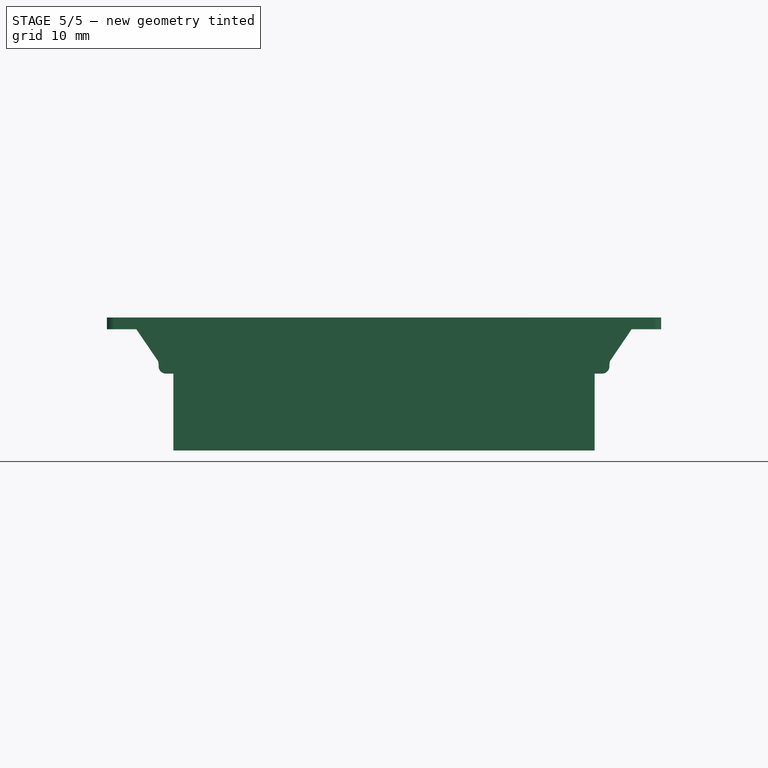
[diagram: stage 5 of 5 — front view after this stage's code; geometry added in this stage tinted green]
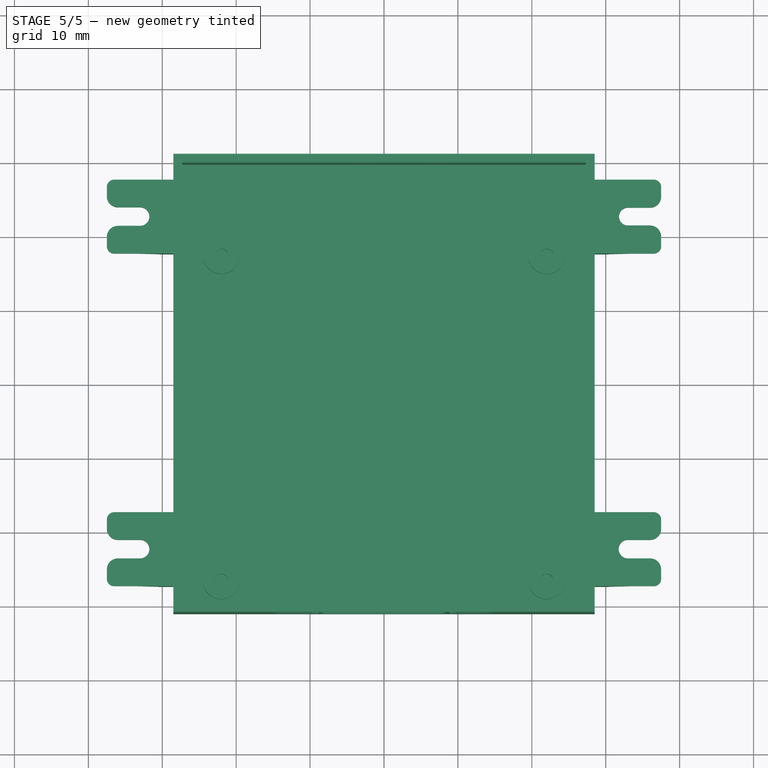
[diagram: stage 5 of 5 — top view after this stage's code; geometry added in this stage tinted green]
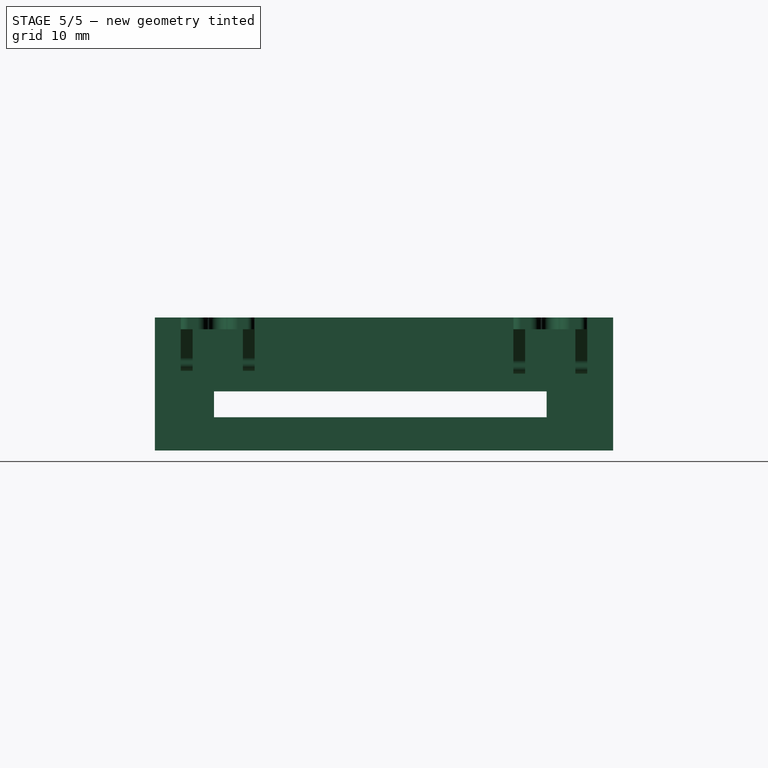
[diagram: stage 5 of 5 — right view after this stage's code; geometry added in this stage tinted green]
FEATURE [Sketcher::SketchObject] Sketch
  FullyConstrained = true
  MapMode = 5
  Support = -> [XY_Plane]
  expr: Constraints[8] = <<Params>>.box_width_external
  expr: Constraints[9] = <<Params>>.box_length_external
  sketch-geometry (4):
    g0: LineSegment StartX=-28.5 StartY=31 StartZ=0 EndX=28.5 EndY=31 EndZ=0
    g1: LineSegment StartX=28.5 StartY=31 StartZ=0 EndX=28.5 EndY=-31 EndZ=0
    g2: LineSegment StartX=28.5 StartY=-31 StartZ=0 EndX=-28.5 EndY=-31 EndZ=0
    g3: LineSegment StartX=-28.5 StartY=-31 StartZ=0 EndX=-28.5 EndY=31 EndZ=0
  constraints (10):
    c: Coincident(g0,g1)
    c: Coincident(g1,g2)
    c: Coincident(g2,g3)
    c: Coincident(g3,g0)
    c: Horizontal(g2)
    c: Vertical(g3)
    c: Symmetric(g0,g1,g-1)
    c: Symmetric(g0,g0,g-2)
    c: DistanceY(g2,g0) = 62
    c: DistanceX(g0,g0) = 57
FEATURE [Spreadsheet::Sheet] Spreadsheet  label="Params"
  cells = A2=box_length_external; B2(box_length_external)=57; A3=box_width_external; B3(box_width_external)=62; A4=box_wall_thickness; B4(box_wall_thickness)=1.2; A5=box_length_internal; B5(box_length_internal)==B2 - 2 * B4; A6=box_width_internal; B6(box_width_internal)==B3 - 2 * B4; A7=box_height; B7(box_height)=18; A8=box_depth; B8(box_depth)==B7 - B4; A9=side_window_length; B9(side_window_length)=45; A10=side_window_height; B10(side_window_height)=3.5; A11=side_window_y; B11(side_window_y)=23; A12=side_window_z; B12(side_window_z)=4.5
FEATURE [PartDesign::Pad] Pad  label="BoxSkin"
  Direction = (0,0,1)
  Length = 18
  Length2 = 10
  Profile = -> Sketch
  ReferenceAxis = -> Sketch [N_Axis]
  Type = 0
  expr: Length = <<Params>>.box_height
FEATURE [PartDesign::Plane] DatumPlane  label="PlaneCavity"
  Length = 88.6382
  MapMode = 5
  Placement = pos=(0,0,18) rot=(0,0,1;0rad)
  ResizeMode = 0
  Support = -> [Pad]
  Width = 75.6382
FEATURE [Sketcher::SketchObject] Sketch001
  FullyConstrained = true
  MapMode = 5
  Placement = pos=(0,0,18) rot=(0,0,1;0rad)
  Support = -> [DatumPlane]
  expr: Constraints[8] = <<Params>>.box_length_internal
  expr: Constraints[9] = <<Params>>.box_width_internal
  sketch-geometry (4):
    g0: LineSegment StartX=-27.3 StartY=29.8 StartZ=0 EndX=27.3 EndY=29.8 EndZ=0
    g1: LineSegment StartX=27.3 StartY=29.8 StartZ=0 EndX=27.3 EndY=-29.8 EndZ=0
    g2: LineSegment StartX=27.3 StartY=-29.8 StartZ=0 EndX=-27.3 EndY=-29.8 EndZ=0
    g3: LineSegment StartX=-27.3 StartY=-29.8 StartZ=0 EndX=-27.3 EndY=29.8 EndZ=0
  constraints (10):
    c: Coincident(g0,g1)
    c: Coincident(g1,g2)
    c: Coincident(g2,g3)
    c: Coincident(g3,g0)
    c: Horizontal(g2)
    c: Vertical(g1)
    c: Symmetric(g0,g0,g-2)
    c: Symmetric(g0,g2,g-1)
    c: DistanceX(g0,g0) = 54.6
    c: DistanceY(g2,g0) = 59.6
FEATURE [PartDesign::Pocket] Pocket  label="Cavity"
  BaseFeature = -> Pad
  Direction = (0,0,-1)
  Length = 16.8
  Length2 = 5
  Profile = -> Sketch001
  ReferenceAxis = -> Sketch001 [N_Axis]
  Type = 0
  expr: Length = <<Params>>.box_depth
FEATURE [PartDesign::Plane] DatumPlane001  label="PlaneSideWindows"
  Length = 73.1355
  MapMode = 5
  Placement = pos=(28.5,0,0) rot=(0.57735,0.57735,0.57735;2.0944rad)
  ResizeMode = 0
  Support = -> [Pocket]
  Width = 61.1355
FEATURE [Sketcher::SketchObject] Sketch002
  FullyConstrained = true
  MapMode = 5
  Placement = pos=(28.5,0,0) rot=(0.57735,0.57735,0.57735;2.0944rad)
  Support = -> [Pocket]
  expr: Constraints[10] = <<Params>>.side_window_y
  expr: Constraints[11] = <<Params>>.side_window_z
  expr: Constraints[8] = <<Params>>.side_window_length
  expr: Constraints[9] = <<Params>>.side_window_height
  sketch-geometry (4):
    g0: LineSegment StartX=-23 StartY=8 StartZ=0 EndX=22 EndY=8 EndZ=0
    g1: LineSegment StartX=22 StartY=8 StartZ=0 EndX=22 EndY=4.5 EndZ=0
    g2: LineSegment StartX=22 StartY=4.5 StartZ=0 EndX=-23 EndY=4.5 EndZ=0
    g3: LineSegment StartX=-23 StartY=4.5 StartZ=0 EndX=-23 EndY=8 EndZ=0
  constraints (12):
    c: Coincident(g0,g1)
    c: Coincident(g1,g2)
    c: Coincident(g2,g3)
    c: Coincident(g3,g0)
    c: Horizontal(g0)
    c: Horizontal(g2)
    c: Vertical(g1)
    c: Vertical(g3)
    c: DistanceX(g0,g0) = 45
    c: DistanceY(g2,g0) = 3.5
    c: DistanceX(g2,g-1) = 23
    c: DistanceY(g-1,g2) = 4.5
FEATURE [PartDesign::Pocket] Pocket001  label="SideWindows"
  BaseFeature = -> Pocket
  Direction = (-1,0,0)
  Length = 5
  Length2 = 5
  Profile = -> Sketch002
  ReferenceAxis = -> Sketch002 [N_Axis]
  Type = 1
FEATURE [PartDesign::Fillet] Fillet003
  Base = -> Fillet002 [Edge38,Edge43]
  BaseFeature = -> Fillet002
  Radius = 1.5
  SupportTransform = false
  UseAllEdges = false
FEATURE [PartDesign::Body] Body004  label="Tab4"
  Group = -> [Sketch010,Pad008,DatumPlane005,Sketch011,Pad009,LinearPattern003,Fillet012,Fillet013,Fillet014,Fillet015]
  Origin = -> Origin012
  Placement = pos=(-33,-22.5,16.4) rot=(0,0,1;3.14159rad)
  Tip = -> Fillet015
FEATURE [Spreadsheet::Sheet] Spreadsheet004  label="Params004"
  cells = A1=tab_insertion; B1(tab_insertion)=1; A2=tab_width; B2(tab_width)=10; A3=tab_length; B3(tab_length)=9; A4=tab_height; B4(tab_height)=6; A5=tab_thickness; B5(tab_thickness)=1.6; A6=tab_rib_length; B6(tab_rib_length)==B3 - 4; A7=tab_rib_height; B7(tab_rib_height)==B4 - B8; A8=tab_rib_thickness; B8(tab_rib_thickness)=1.6; A9=tab_hole_x; B9(tab_hole_x)==B3 / 2; A10=tab_hole_y; B10(tab_hole_y)=0; A11=tab_hole_diameter; B11(tab_hole_diameter)=2.5; A12=tab_rib_insert; B12(tab_rib_insert)==2 * B1; A13=tab_ribs_gap; B13(tab_ribs_gap)==B2 - B8
FEATURE [PartDesign::SubShapeBinder] Binder
  BindCopyOnChange = 0
  BindMode = 0
  ClaimChildren = false
  Context = -> Body [Binder.]
  Fuse = false
  MakeFace = true
  OffsetFill = false
  OffsetIntersection = false
  OffsetJoinType = 0
  OffsetOpenResult = false
  PartialLoad = false
  Relative = true
  _Version = 2
FEATURE [Sketcher::SketchObject] Sketch003
  ExternalGeometry = -> [Pocket001,Binder]
  FullyConstrained = true
  MapMode = 5
  Placement = pos=(0,0,1.2) rot=(0,0,1;0rad)
  Support = -> [Pocket001]
  sketch-geometry (8):
    g0: Circle CenterX=22 CenterY=17.5 CenterZ=0 NormalX=0 NormalY=0 NormalZ=1 AngleXU=0 Radius=0.9
    g1: Circle CenterX=-22 CenterY=17.5 CenterZ=0 NormalX=0 NormalY=0 NormalZ=1 AngleXU=0 Radius=0.9
    g2: Circle CenterX=-22 CenterY=-26.5 CenterZ=0 NormalX=0 NormalY=0 NormalZ=1 AngleXU=0 Radius=0.9
    g3: Circle CenterX=22 CenterY=-26.5 CenterZ=0 NormalX=0 NormalY=0 NormalZ=1 AngleXU=0 Radius=0.9
    g4: Circle CenterX=22 CenterY=-26.5 CenterZ=0 NormalX=0 NormalY=0 NormalZ=1 AngleXU=0 Radius=2.5
    g5: Circle CenterX=-22 CenterY=-26.5 CenterZ=0 NormalX=0 NormalY=0 NormalZ=1 AngleXU=0 Radius=2.5
    g6: Circle CenterX=22 CenterY=17.5 CenterZ=0 NormalX=0 NormalY=0 NormalZ=1 AngleXU=0 Radius=2.5
    g7: Circle CenterX=-22 CenterY=17.5 CenterZ=0 NormalX=0 NormalY=0 NormalZ=1 AngleXU=0 Radius=2.5
  constraints (16):
    c: Equal(g1,g0)
    c: Equal(g1,g2)
    c: Equal(g1,g3)
    c: Diameter(g1) = 1.8
    c: Coincident(g3,g-10)
    c: Coincident(g4,g3)
    c: Coincident(g2,g-11)
    c: Coincident(g5,g2)
    c: Coincident(g-8,g1)
    c: Coincident(g7,g1)
    c: Coincident(g0,g-9)
    c: Coincident(g6,g0)
    c: Diameter(g7) = 5
    c: Equal(g7,g5)
    c: Equal(g5,g4)
    c: Equal(g4,g6)
FEATURE [PartDesign::Pad] Pad001  label="FixingBosses"
  BaseFeature = -> Pocket001
  Direction = (0,0,1)
  Length = 2.5
  Length2 = 10
  Profile = -> Sketch003
  ReferenceAxis = -> Sketch003 [N_Axis]
  Type = 0
FEATURE [PartDesign::Boolean] Boolean
  BaseFeature = -> Pad001
  Group = -> [Body002,Body001,Body004,Body003]
  Type = 0
FEATURE [PartDesign::Plane] DatumPlane006  label="PlaneDB9Cutout"
  AttachmentOffset = pos=(0,0,1) rot=(0,0,1;0rad)
  Length = 87.2474
  MapMode = 5
  Placement = pos=(0,-32,2e-16) rot=(1,0,0;1.5708rad)
  ResizeMode = 0
  Support = -> [Boolean]
  Width = 62.2474
FEATURE [Sketcher::SketchObject] Sketch012
  FullyConstrained = true
  MapMode = 5
  Placement = pos=(0,-32,2e-16) rot=(1,0,0;1.5708rad)
  Support = -> [DatumPlane006]
  sketch-geometry (16):
    g0: LineSegment StartX=-9.02284 StartY=16.5 StartZ=0 EndX=9.02284 EndY=16.5 EndZ=0
    g1: LineSegment StartX=-10 StartY=15.2875 StartZ=0 EndX=-9.72 EndY=14 EndZ=0
    g2: LineSegment StartX=-7.5195 StartY=6 StartZ=0 EndX=7.5195 EndY=6 EndZ=0
    g3: LineSegment StartX=8.5 StartY=6.8035 StartZ=0 EndX=8.84 EndY=8.5 EndZ=0
    g4: ArcOfCircle CenterX=-12.5 CenterY=11.25 CenterZ=0 NormalX=0 NormalY=0 NormalZ=1 AngleXU=0 Radius=2.75 StartAngle=1.5708 EndAngle=4.71239
    g5: ArcOfCircle CenterX=12.5 CenterY=11.25 CenterZ=0 NormalX=0 NormalY=0 NormalZ=1 AngleXU=0 Radius=2.75 StartAngle=4.71239 EndAngle=7.85398
    g6: ArcOfCircle CenterX=9.02284 CenterY=15.5 CenterZ=0 NormalX=0 NormalY=0 NormalZ=1 AngleXU=0 Radius=1 StartAngle=6.06904 EndAngle=7.85398
    g7: ArcOfCircle CenterX=-9.02284 CenterY=15.5 CenterZ=0 NormalX=0 NormalY=0 NormalZ=1 AngleXU=0 Radius=1 StartAngle=1.5708 EndAngle=3.35574
    g8: ArcOfCircle CenterX=-7.5195 CenterY=7 CenterZ=0 NormalX=0 NormalY=0 NormalZ=1 AngleXU=0 Radius=1 StartAngle=3.33938 EndAngle=4.71239
    g9: ArcOfCircle CenterX=7.5195 CenterY=7 CenterZ=0 NormalX=0 NormalY=0 NormalZ=1 AngleXU=0 Radius=1 StartAngle=4.71239 EndAngle=6.08539
    g10: LineSegment StartX=-12.5 StartY=14 StartZ=0 EndX=-9.72 EndY=14 EndZ=0
    g11: LineSegment StartX=-12.5 StartY=8.5 StartZ=0 EndX=-8.84 EndY=8.5 EndZ=0
    g12: LineSegment StartX=-8.84 StartY=8.5 StartZ=0 EndX=-8.5 EndY=6.8035 EndZ=0
    g13: LineSegment StartX=12.5 StartY=14 StartZ=0 EndX=9.72 EndY=14 EndZ=0
    g14: LineSegment StartX=12.5 StartY=8.5 StartZ=0 EndX=8.84 EndY=8.5 EndZ=0
    g15: LineSegment StartX=9.72 StartY=14 StartZ=0 EndX=10 EndY=15.2875 EndZ=0
  constraints (41):
    c: DistanceX(g4,g5) = 25
    c: Diameter(g4) = 5.5
    c: Equal(g5,g4)
    c: Symmetric(g4,g5,g-2)
    c: Tangent(g0,g6) = 1.5708
    c: Coincident(g15,g6) = -1.5708
    c: Tangent(g1,g7) = -1.5708
    c: Tangent(g0,g7) = 1.5708
    c: Coincident(g12,g8) = -1.5708
    c: Tangent(g2,g8) = -1.5708
    c: Tangent(g3,g9) = -1.5708
    c: Tangent(g2,g9) = -1.5708
    c: Diameter(g7) = 2
    c: Equal(g7,g6)
    c: Equal(g8,g9)
    c: Equal(g9,g7)
    c: Symmetric(g0,g0,g-2)
    c: Symmetric(g2,g2,g-2)
    c: DistanceX(g1,g15) = 20
    c: DistanceX(g12,g3) = 17
    c: DistanceY(g2,g0) = 10.5
    c: DistanceY(g-1,g2) = 6
    c: DistanceY(g2,g4) = 5.25
    c: Horizontal(g10)
    c: Horizontal(g11)
    c: Tangent(g4,g11) = -1.5708
    c: Tangent(g4,g10) = 1.5708
    c: Coincident(g1,g10)
    c: Coincident(g12,g11)
    c: DistanceX(g4,g1) = 2.78
    c: DistanceX(g4,g11) = 3.66
    c: DistanceX(g11,g8) = 0.34
    c: Horizontal(g13)
    c: Horizontal(g14)
    c: Tangent(g5,g13) = -1.5708
    c: Tangent(g5,g14) = 1.5708
    c: Coincident(g3,g14)
    c: Coincident(g15,g13)
    c: Equal(g1,g15)
    c: DistanceX(g13,g5) = 2.78
    c: DistanceX(g3,g3) = 0.34
FEATURE [PartDesign::Pocket] Pocket002  label="DB9Cutout"
  BaseFeature = -> Boolean
  Direction = (0,1,-2e-16)
  Length = 5
  Length2 = 5
  Profile = -> Sketch012
  ReferenceAxis = -> Sketch012 [N_Axis]
  Type = 0
FEATURE [PartDesign::Body] Body
  Group = -> [Sketch,Pad,DatumPlane,Sketch001,Pocket,DatumPlane001,Sketch002,Pocket001,Sketch003,Pad001,Boolean,DatumPlane006,Sketch012,Binder,Pocket002]
  Origin = -> Origin
  Tip = -> Pocket002
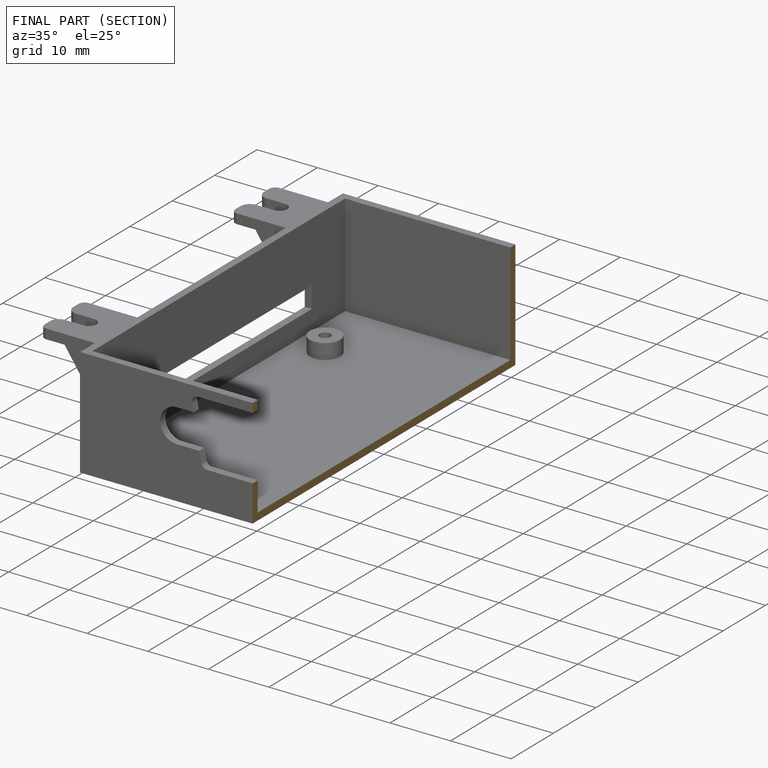
[diagram: finished part — half-section view (interior)]
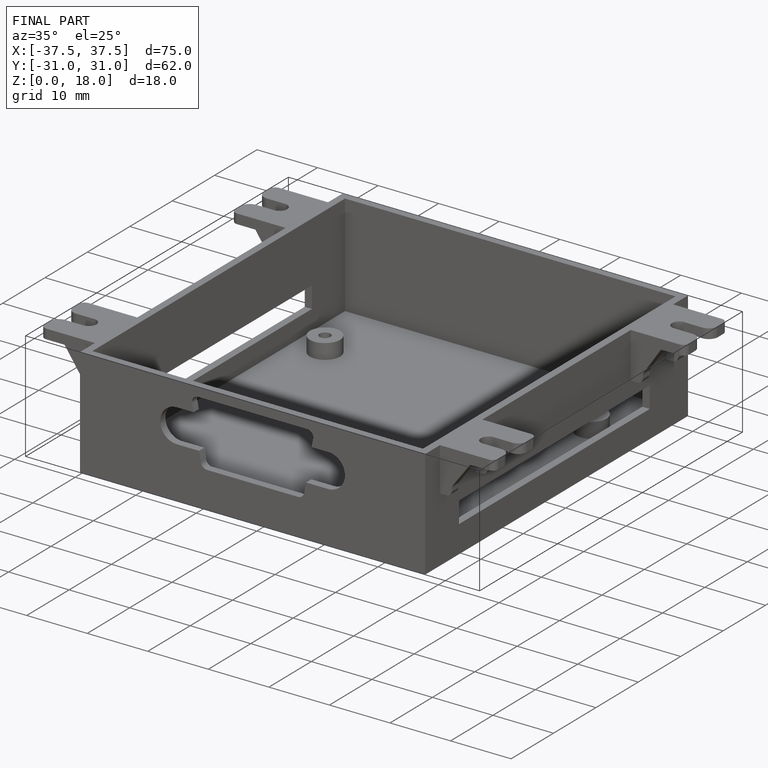
[diagram: finished part — iso view with bounding-box wireframe]
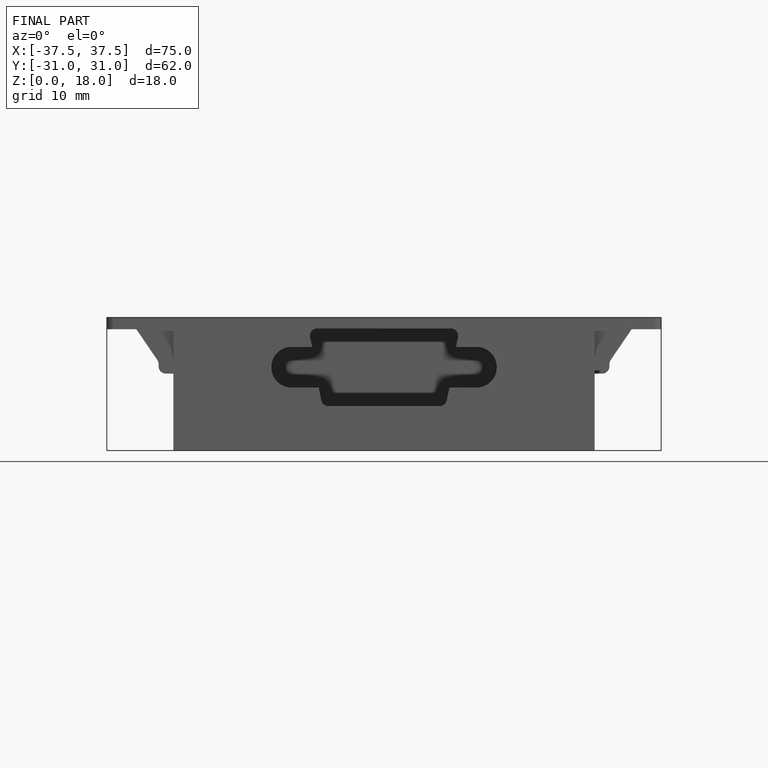
[diagram: finished part — front view with bounding-box wireframe]
